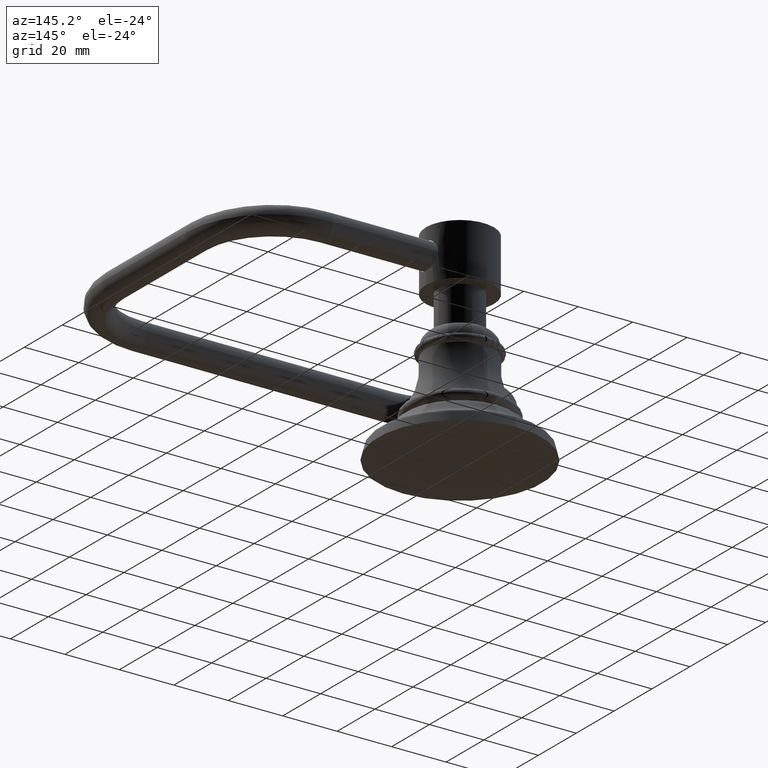
[diagram: clean part render]
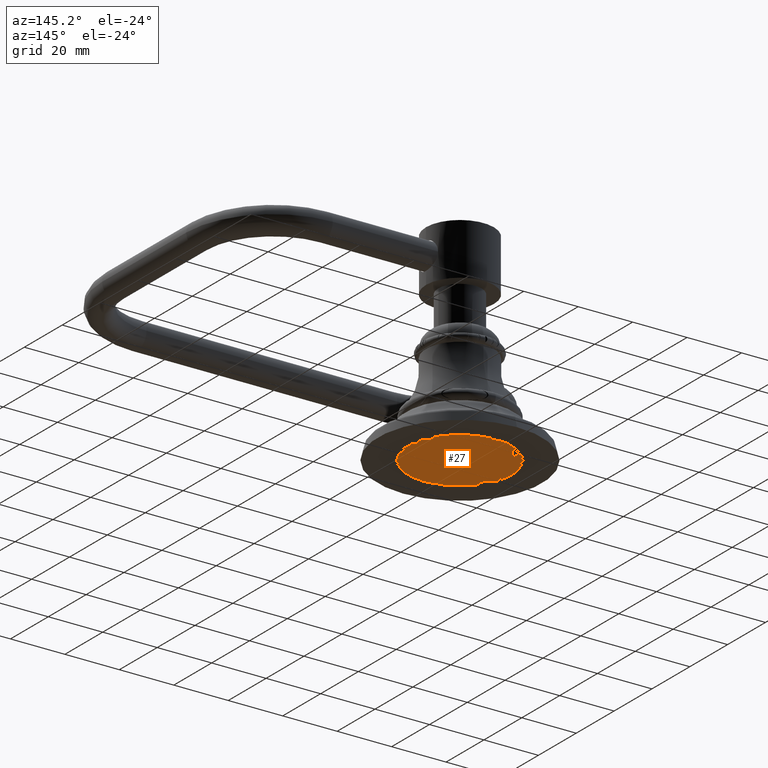
[diagram: same view with one face highlighted and labeled with its STEP entity id]
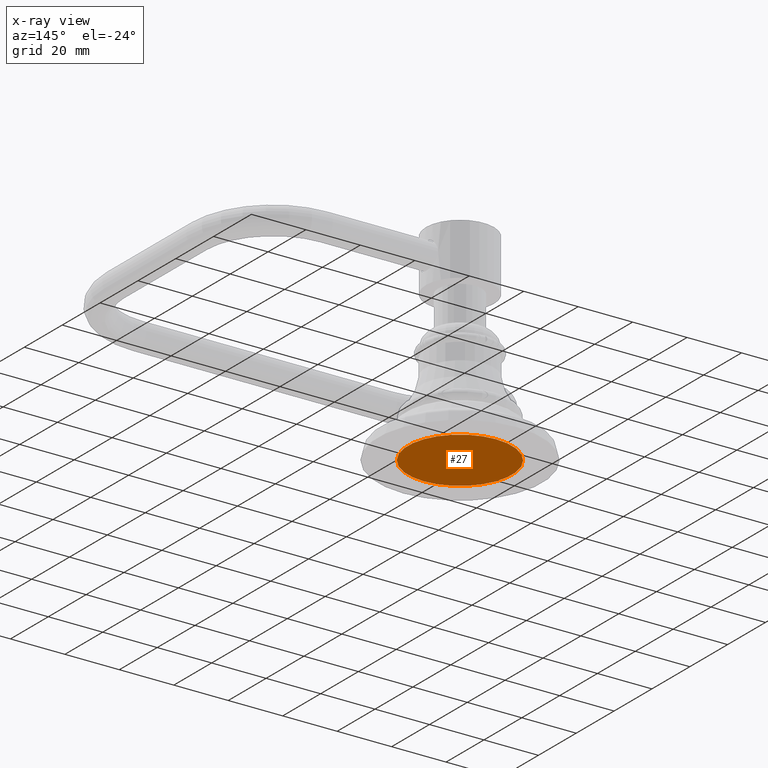
[diagram: x-ray of the same camera — body ghosted, the highlighted face saturated]
A machine part, auxiliary view. The second image highlights one B-rep face of the part: STEP entity #27.
The next image is the same camera in x-ray: the body ghosted, the highlighted face saturated — about 0% of this face is hidden behind the body in this view.
In plain terms, the highlighted planar face has unit normal (0, 0, -1).
Its self-contained STEP definition (entity closure, byte-faithful):
#2=CARTESIAN_POINT('',(0.E0,0.E0,0.E0));
#3=DIRECTION('',(0.E0,0.E0,1.E0));
#4=DIRECTION('',(0.E0,-1.E0,0.E0));
#5=AXIS2_PLACEMENT_3D('',#2,#3,#4);
#7=CARTESIAN_POINT('',(0.E0,0.E0,0.E0));
#8=DIRECTION('',(0.E0,0.E0,1.E0));
#9=DIRECTION('',(0.E0,1.E0,0.E0));
#10=AXIS2_PLACEMENT_3D('',#7,#8,#9);
#12=CARTESIAN_POINT('',(0.E0,7.5E-1,0.E0));
#13=CARTESIAN_POINT('',(0.E0,-7.5E-1,0.E0));
#14=VERTEX_POINT('',#12);
#15=VERTEX_POINT('',#13);
#16=CARTESIAN_POINT('',(0.E0,0.E0,0.E0));
#17=DIRECTION('',(0.E0,0.E0,-1.E0));
#18=DIRECTION('',(0.E0,-1.E0,0.E0));
#19=AXIS2_PLACEMENT_3D('',#16,#17,#18);
#20=PLANE('',#19);
#22=ORIENTED_EDGE('',*,*,#21,.T.);
#24=ORIENTED_EDGE('',*,*,#23,.T.);
#25=EDGE_LOOP('',(#22,#24));
#26=FACE_OUTER_BOUND('',#25,.F.);
#27=ADVANCED_FACE('',(#26),#20,.T.);
#6=CIRCLE('',#5,7.5E-1);
#11=CIRCLE('',#10,7.5E-1);
#21=EDGE_CURVE('',#15,#14,#6,.T.);
#23=EDGE_CURVE('',#14,#15,#11,.T.);